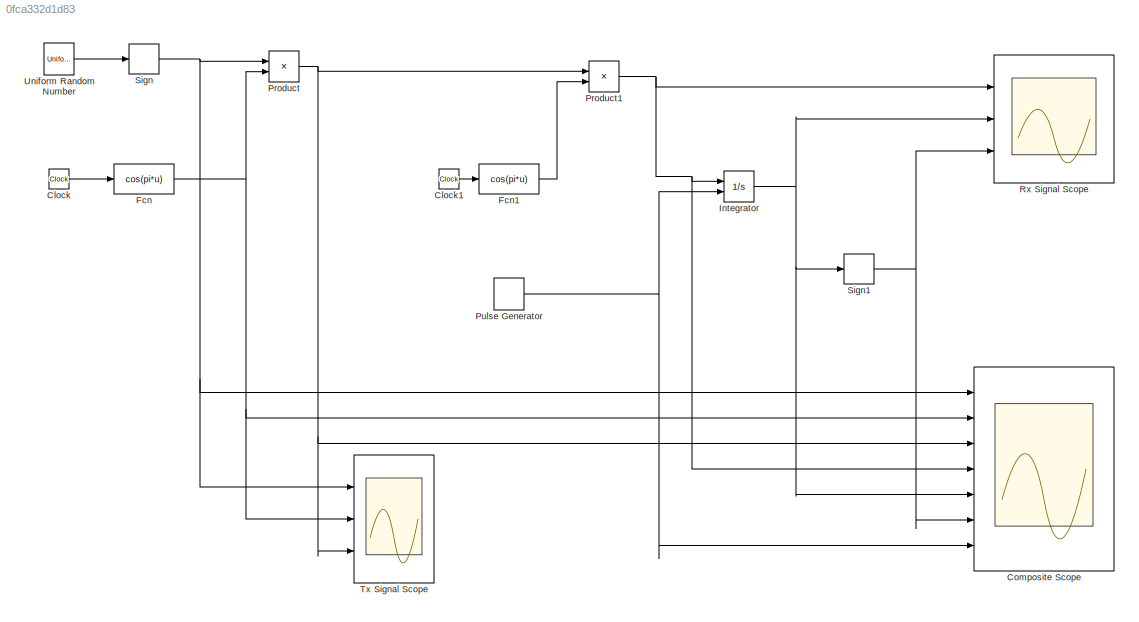
MODEL slx_0fca332d1d83
KIND model
BLOCK [Clock] Clock
  DisplayTime = on
BLOCK [Clock] Clock1
  DisplayTime = on
BLOCK [Scope] Composite Scope
  DataFormat = StructureWithTime
  Floating = off
  NumInputPorts = 7
  Ports = [7]
  SampleTime = 0
  SaveName = ScopeData1
  ShowLegends = off
  YMax = 5~5~5~5~5~5~5
  YMin = -5~-5~-5~-5~-5~-5~-5
BLOCK [Fcn] Fcn
  Expr = cos(pi*u)
BLOCK [Fcn] Fcn1
  Expr = cos(pi*u)
BLOCK [Integrator] Integrator
  ExternalReset = rising
  Ports = [2, 1]
BLOCK [Product] Product
  InputSameDT = off
  OutDataTypeStr = Inherit: Inherit via internal rule
  Ports = [2, 1]
  RndMeth = Floor
  SaturateOnIntegerOverflow = off
BLOCK [Product] Product1
  InputSameDT = off
  OutDataTypeStr = Inherit: Inherit via internal rule
  Ports = [2, 1]
  RndMeth = Floor
  SaturateOnIntegerOverflow = off
BLOCK [DiscretePulseGenerator] Pulse Generator
  Amplitude = 5
  Period = 10
  Ports = [0, 1]
  PulseType = Time based
  PulseWidth = 50
BLOCK [Scope] Rx Signal Scope
  DataFormat = StructureWithTime
  Floating = off
  NumInputPorts = 3
  Ports = [3]
  SampleTime = 0
  SaveName = ScopeData2
  ShowLegends = off
  YMax = 5~5~5
  YMin = -5~-5~-5
BLOCK [Signum] Sign
BLOCK [Signum] Sign1
BLOCK [Scope] Tx Signal Scope
  DataFormat = StructureWithTime
  Floating = off
  NumInputPorts = 3
  Ports = [3]
  SampleTime = 0
  ShowLegends = off
  YMax = 5~5~5
  YMin = -5~-5~-5
BLOCK [UniformRandomNumber] Uniform Random Number
  SampleTime = 0.1
LINE Clock1:1 -> Fcn1:1
LINE Clock:1 -> Fcn:1
LINE Fcn1:1 -> Product1:2
NET Fcn:1 -> Composite Scope:2, Product:2, Tx Signal Scope:2
NET Integrator:1 -> Composite Scope:5, Rx Signal Scope:2, Sign1:1
NET Product1:1 -> Composite Scope:4, Integrator:1, Rx Signal Scope:1
NET Product:1 -> Composite Scope:3, Product1:1, Tx Signal Scope:3
NET Pulse Generator:1 -> Composite Scope:7, Integrator:2
NET Sign1:1 -> Composite Scope:6, Rx Signal Scope:3
NET Sign:1 -> Composite Scope:1, Product:1, Tx Signal Scope:1
LINE Uniform Random Number:1 -> Sign:1
note: NET lines group one-source signal fan-out (src -> all destinations, sorted); 1:1 wires keep LINE
